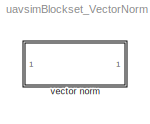
MODEL uavsimBlockset_VectorNorm
KIND library
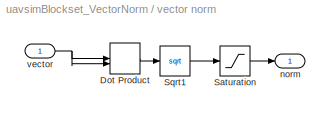
BLOCK [SubSystem] vector norm
  Ports = [1, 1]
  RequestExecContextInheritance = off
  SID = 1810
BLOCK [DotProduct] vector norm/Dot Product
  OutDataTypeStr = Inherit: Inherit via internal rule
  SID = 1814
BLOCK [Saturate] vector norm/Saturation
  InputPortMap = u0
  LowerLimit = eps
  Ports = [1, 1]
  SID = 2204
  UpperLimit = inf
BLOCK [Sqrt] vector norm/Sqrt1
  OutputSignalType = real
  SID = 1815
BLOCK [Outport] vector norm/norm
  IconDisplay = Port number
  OutDataTypeStr = double
  PortDimensions = 1
  SID = 1816
BLOCK [Inport] vector norm/vector
  IconDisplay = Port number
  OutDataTypeStr = double
  SID = 1813
LINE vector norm/Dot Product:1 -> vector norm/Sqrt1:1
LINE vector norm/Saturation:1 -> vector norm/norm:1
LINE vector norm/Sqrt1:1 -> vector norm/Saturation:1
NET vector norm/vector:1 -> vector norm/Dot Product:1, vector norm/Dot Product:2
note: NET lines group one-source signal fan-out (src -> all destinations, sorted); 1:1 wires keep LINE
